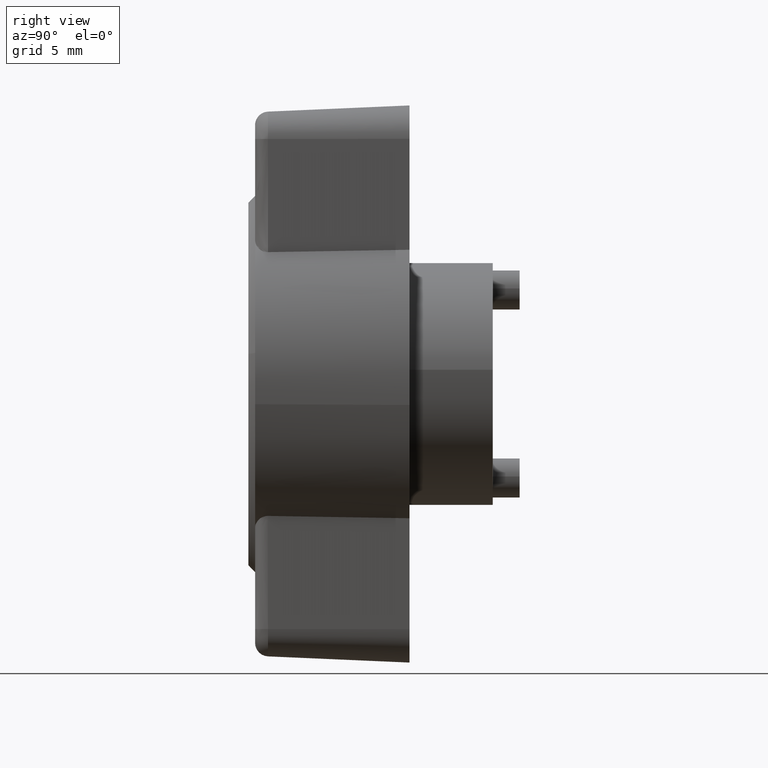
[diagram: clean part render]
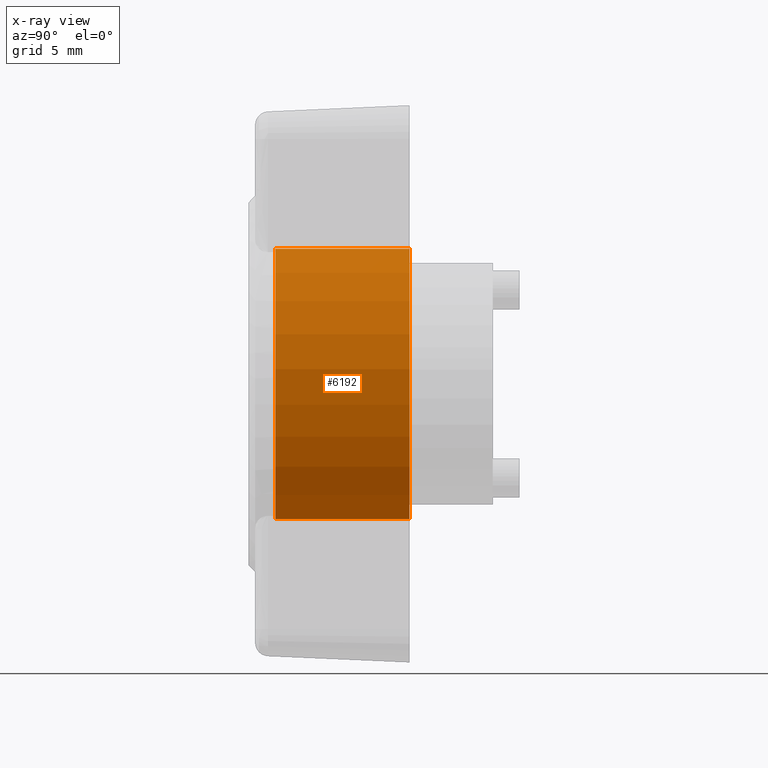
[diagram: x-ray — body ghosted, one internal face saturated and labeled with its STEP entity id]
A machine part, right view, then the same camera in x-ray: the body is ghosted and one INTERNAL B-rep face — a face not visible from any outside direction — is saturated and labeled: STEP entity #6192.
In plain terms, the highlighted face is a freeform B-spline surface patch.
Its self-contained STEP definition (entity closure, byte-faithful):
#6128=CARTESIAN_POINT('',(10.250000000000000,8.621495455696500,-10.388446279757360));
#6129=CARTESIAN_POINT('',(-0.256250000000001,8.621495455696500,-10.388446279757360));
#6130=CARTESIAN_POINT('',(10.250000000000002,21.619736961855722,0.398949357621321));
#6131=CARTESIAN_POINT('',(-0.256250000000002,21.619736961855722,0.398949357621321));
#6132=CARTESIAN_POINT('',(10.249999999999998,8.232360148965656,10.699450751217183));
#6133=CARTESIAN_POINT('',(-0.256250000000001,8.232360148965656,10.699450751217183));
#6141=(BOUNDED_SURFACE()B_SPLINE_SURFACE(1,2,((#6128,#6130,#6132),(#6129,#6131,#6133)),.UNSPECIFIED.,.F.,.F.,.U.)B_SPLINE_SURFACE_WITH_KNOTS((2,2),(3,3),(0.0,10.506250000000000),(0.0,25.969560490865749),.UNSPECIFIED.)GEOMETRIC_REPRESENTATION_ITEM()RATIONAL_B_SPLINE_SURFACE(((1.0,0.623629054050099,0.997777745171458),(1.0,0.623629054050099,0.997777745171458)))REPRESENTATION_ITEM('')SURFACE());
#6142=CARTESIAN_POINT('',(0.0,9.0,10.062305898749040));
#6143=VERTEX_POINT('',#6142);
#6144=CARTESIAN_POINT('',(0.0,9.0,-10.062305898749059));
#6145=VERTEX_POINT('',#6144);
#6146=CARTESIAN_POINT('',(0.0,9.000000000000007,10.062305898749051));
#6147=CARTESIAN_POINT('',(0.0,13.500000000000000,6.037383539249429));
#6148=CARTESIAN_POINT('',(0.0,13.500000000000000,-3.944305E-031));
#6149=CARTESIAN_POINT('',(0.0,13.500000000000000,-6.037383539249436));
#6150=CARTESIAN_POINT('',(0.0,8.999999999999995,-10.062305898749059));
#6158=(BOUNDED_CURVE()B_SPLINE_CURVE(2,(#6146,#6147,#6148,#6149,#6150),.UNSPECIFIED.,.F.,.U.)B_SPLINE_CURVE_WITH_KNOTS((3,2,3),(0.0,0.500000000000000,1.0),.UNSPECIFIED.)CURVE()GEOMETRIC_REPRESENTATION_ITEM()RATIONAL_B_SPLINE_CURVE((1.0,0.912870929175277,1.0,0.912870929175277,1.0))REPRESENTATION_ITEM(''));
#6159=EDGE_CURVE('',#6143,#6145,#6158,.T.);
#6160=ORIENTED_EDGE('',*,*,#6159,.F.);
#6161=CARTESIAN_POINT('',(10.0,9.0,10.062305898749040));
#6162=VERTEX_POINT('',#6161);
#6163=CARTESIAN_POINT('',(10.0,9.0,10.062305898749040));
#6164=CARTESIAN_POINT('',(0.0,9.0,10.062305898749040));
#6165=QUASI_UNIFORM_CURVE('',1,(#6163,#6164),.UNSPECIFIED.,.F.,.U.);
#6166=EDGE_CURVE('',#6162,#6143,#6165,.T.);
#6167=ORIENTED_EDGE('',*,*,#6166,.F.);
#6168=CARTESIAN_POINT('',(10.0,9.0,-10.062305898749059));
#6169=VERTEX_POINT('',#6168);
#6170=CARTESIAN_POINT('',(10.0,9.000000000000007,10.062305898749051));
#6171=CARTESIAN_POINT('',(10.0,13.500000000000000,6.037383539249429));
#6172=CARTESIAN_POINT('',(10.0,13.500000000000000,-3.944305E-031));
#6173=CARTESIAN_POINT('',(10.0,13.500000000000000,-6.037383539249436));
#6174=CARTESIAN_POINT('',(10.0,8.999999999999995,-10.062305898749059));
#6182=(BOUNDED_CURVE()B_SPLINE_CURVE(2,(#6170,#6171,#6172,#6173,#6174),.UNSPECIFIED.,.F.,.U.)B_SPLINE_CURVE_WITH_KNOTS((3,2,3),(0.0,0.500000000000000,1.0),.UNSPECIFIED.)CURVE()GEOMETRIC_REPRESENTATION_ITEM()RATIONAL_B_SPLINE_CURVE((1.0,0.912870929175277,1.0,0.912870929175277,1.0))REPRESENTATION_ITEM(''));
#6183=EDGE_CURVE('',#6162,#6169,#6182,.T.);
#6184=ORIENTED_EDGE('',*,*,#6183,.T.);
#6185=CARTESIAN_POINT('',(10.0,9.0,-10.062305898749059));
#6186=CARTESIAN_POINT('',(0.0,9.0,-10.062305898749059));
#6187=QUASI_UNIFORM_CURVE('',1,(#6185,#6186),.UNSPECIFIED.,.F.,.U.);
#6188=EDGE_CURVE('',#6169,#6145,#6187,.T.);
#6189=ORIENTED_EDGE('',*,*,#6188,.T.);
#6190=EDGE_LOOP('',(#6160,#6167,#6184,#6189));
#6191=FACE_OUTER_BOUND('',#6190,.T.);
#6192=ADVANCED_FACE('',(#6191),#6141,.T.);